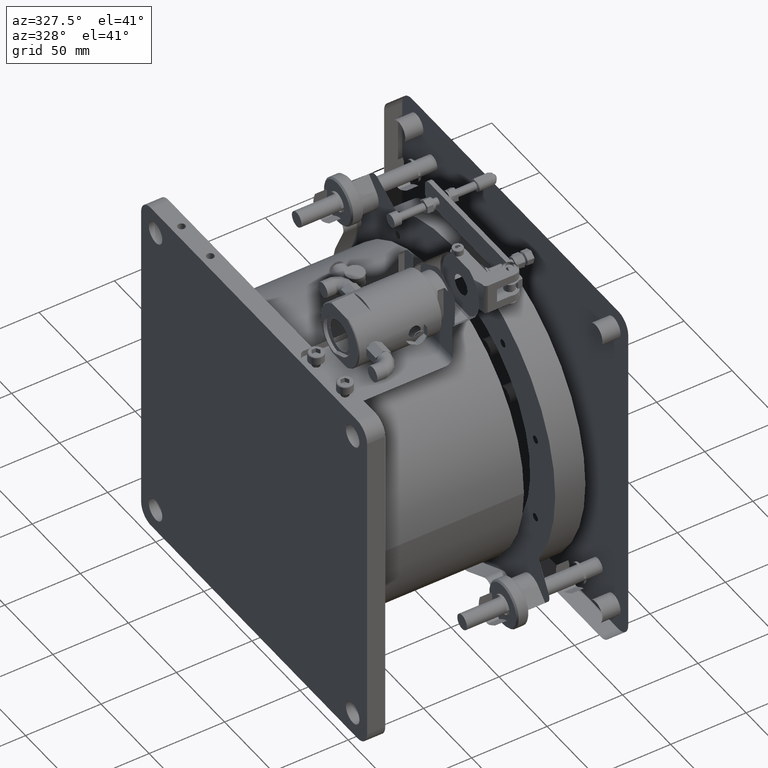
[diagram: clean part render]
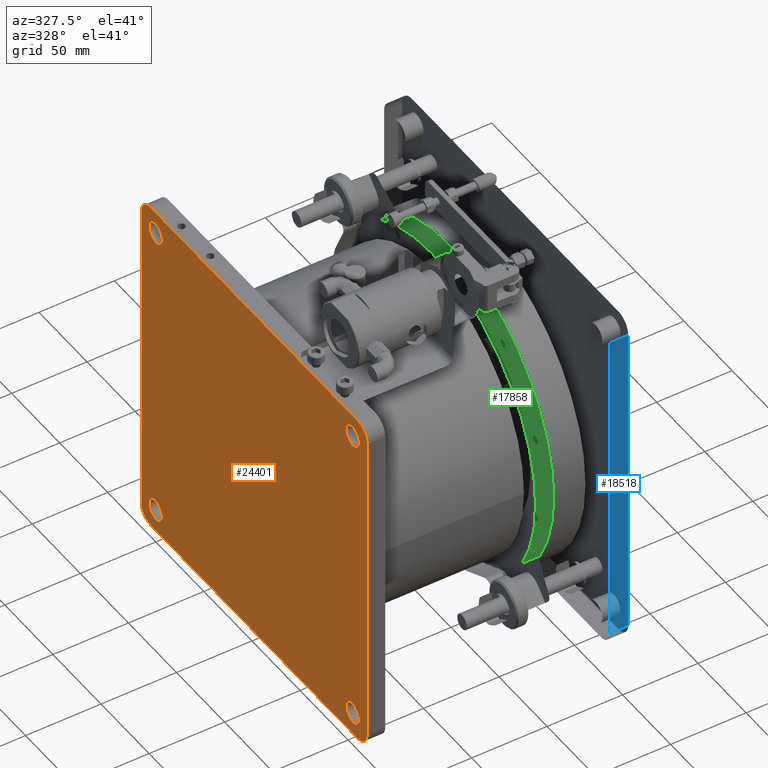
[diagram: same view with three faces highlighted in distinct colors, each labeled with its STEP entity id]
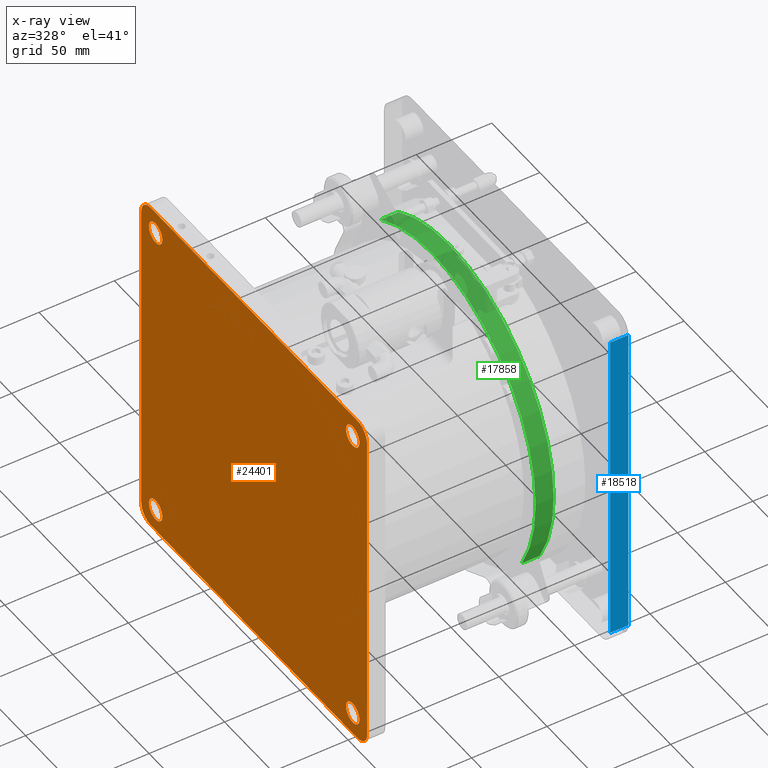
[diagram: x-ray of the same camera — body ghosted, the three highlighted faces saturated]
A machine part, auxiliary view with three faces highlighted in distinct colors.
The next image is the same camera in x-ray (body ghosted, the three faces saturated) — at least one of them is partly hidden behind the body in this view.
Their STEP definitions:

[orange] entity #24401 — the highlighted planar face has unit normal (-1, 0, 0).
#58 = DIRECTION ( 'NONE',  ( 3.473364927200038699E-17, 0.000000000000000000, 1.000000000000000000 ) ) ;
#184 = FACE_BOUND ( 'NONE', #24961, .T. ) ;
#267 = VERTEX_POINT ( 'NONE', #14850 ) ;
#274 = AXIS2_PLACEMENT_3D ( 'NONE', #8655, #12070, #16395 ) ;
#391 = ORIENTED_EDGE ( 'NONE', *, *, #632, .T. ) ;
#523 = LINE ( 'NONE', #4230, #21189 ) ;
#632 = EDGE_CURVE ( 'NONE', #10797, #11279, #17345, .T. ) ;
#1094 = DIRECTION ( 'NONE',  ( 3.473364927200038699E-17, 0.000000000000000000, 1.000000000000000000 ) ) ;
#1311 = VERTEX_POINT ( 'NONE', #19528 ) ;
#1688 = DIRECTION ( 'NONE',  ( 0.000000000000000000, 0.000000000000000000, 1.000000000000000000 ) ) ;
#1971 = DIRECTION ( 'NONE',  ( -1.000000000000000000, 3.081487911019577365E-33, 3.473364927200038699E-17 ) ) ;
#2000 = ORIENTED_EDGE ( 'NONE', *, *, #18579, .T. ) ;
#2973 = EDGE_LOOP ( 'NONE', ( #22254, #14530, #4603, #391, #13302, #12331, #16971, #12708 ) ) ;
#3325 = VECTOR ( 'NONE', #8746, 1000.000000000000000 ) ;
#3395 = CARTESIAN_POINT ( 'NONE',  ( 401.4299721316714340, 117.5000000000000426, 591.6094016609062010 ) ) ;
#3592 = DIRECTION ( 'NONE',  ( 1.000000000000000000, -3.081487911019577365E-33, -3.473364927200038699E-17 ) ) ;
#3597 = CARTESIAN_POINT ( 'NONE',  ( 401.4299721316714340, -102.4999999999999432, 489.1094016609063715 ) ) ;
#3655 = EDGE_CURVE ( 'NONE', #5692, #1311, #5072, .T. ) ;
#3709 = EDGE_LOOP ( 'NONE', ( #20944 ) ) ;
#3881 = CARTESIAN_POINT ( 'NONE',  ( 401.4299721316714340, -1.951563910473908770E-15, 591.6094016609062010 ) ) ;
#4027 = VECTOR ( 'NONE', #1094, 1000.000000000000000 ) ;
#4230 = CARTESIAN_POINT ( 'NONE',  ( 401.4299721316714340, -1.951563910473908770E-15, 474.1094016609062010 ) ) ;
#4463 = CARTESIAN_POINT ( 'NONE',  ( 401.4299721316714340, -102.4999999999999147, 701.1094016609062010 ) ) ;
#4486 = DIRECTION ( 'NONE',  ( -1.000000000000000000, 3.081487911019577365E-33, 3.473364927200038699E-17 ) ) ;
#4576 = EDGE_CURVE ( 'NONE', #13065, #5970, #8358, .T. ) ;
#4603 = ORIENTED_EDGE ( 'NONE', *, *, #24052, .T. ) ;
#4793 = LINE ( 'NONE', #3395, #3325 ) ;
#4908 = LINE ( 'NONE', #6453, #4027 ) ;
#5072 = CIRCLE ( 'NONE', #20110, 10.00000000000000888 ) ;
#5591 = VERTEX_POINT ( 'NONE', #20595 ) ;
#5692 = VERTEX_POINT ( 'NONE', #8393 ) ;
#5970 = VERTEX_POINT ( 'NONE', #11925 ) ;
#6042 = FACE_BOUND ( 'NONE', #17282, .T. ) ;
#6097 = CARTESIAN_POINT ( 'NONE',  ( 401.4299721316714340, -102.4999999999999147, 694.1094016609062010 ) ) ;
#6215 = CIRCLE ( 'NONE', #9862, 7.000000000000006217 ) ;
#6227 = VERTEX_POINT ( 'NONE', #11677 ) ;
#6453 = CARTESIAN_POINT ( 'NONE',  ( 401.4299721316714340, -117.5000000000000142, 591.6094016609062010 ) ) ;
#6532 = DIRECTION ( 'NONE',  ( 1.000000000000000000, -3.081487911019577365E-33, -3.473364927200038699E-17 ) ) ;
#6769 = CARTESIAN_POINT ( 'NONE',  ( 401.4299721316714340, -107.5000000000000142, 484.1094016609062010 ) ) ;
#7139 = DIRECTION ( 'NONE',  ( 0.000000000000000000, 0.000000000000000000, 1.000000000000000000 ) ) ;
#7401 = CARTESIAN_POINT ( 'NONE',  ( 401.4299721316714340, -1.951563910473908770E-15, 709.1094016609063146 ) ) ;
#8298 = DIRECTION ( 'NONE',  ( -3.081487911019577365E-33, -1.000000000000000000, 1.070313203372631366E-49 ) ) ;
#8358 = CIRCLE ( 'NONE', #16459, 10.00000000000000888 ) ;
#8393 = CARTESIAN_POINT ( 'NONE',  ( 401.4299721316714340, 107.5000000000000568, 709.1094016609063146 ) ) ;
#8493 = EDGE_CURVE ( 'NONE', #15458, #13065, #523, .T. ) ;
#8655 = CARTESIAN_POINT ( 'NONE',  ( 401.4299721316714340, -107.5000000000000000, 699.1094016609063146 ) ) ;
#8696 = DIRECTION ( 'NONE',  ( -1.000000000000000000, 3.081487911019577365E-33, 3.473364927200038699E-17 ) ) ;
#8746 = DIRECTION ( 'NONE',  ( -3.473364927200038699E-17, -0.000000000000000000, -1.000000000000000000 ) ) ;
#8854 = EDGE_CURVE ( 'NONE', #18306, #18306, #17082, .T. ) ;
#9070 = CIRCLE ( 'NONE', #13915, 7.000000000000006217 ) ;
#9650 = DIRECTION ( 'NONE',  ( 1.000000000000000000, -3.081487911019577365E-33, -3.473364927200038699E-17 ) ) ;
#9777 = AXIS2_PLACEMENT_3D ( 'NONE', #6097, #9650, #17782 ) ;
#9862 = AXIS2_PLACEMENT_3D ( 'NONE', #3597, #20643, #10976 ) ;
#10797 = VERTEX_POINT ( 'NONE', #17162 ) ;
#10951 = DIRECTION ( 'NONE',  ( 0.000000000000000000, 0.000000000000000000, 1.000000000000000000 ) ) ;
#10976 = DIRECTION ( 'NONE',  ( 0.000000000000000000, 0.000000000000000000, 1.000000000000000000 ) ) ;
#11279 = VERTEX_POINT ( 'NONE', #12536 ) ;
#11677 = CARTESIAN_POINT ( 'NONE',  ( 401.4299721316714340, 102.4999999999998579, 701.1094016609062010 ) ) ;
#11871 = ORIENTED_EDGE ( 'NONE', *, *, #8854, .T. ) ;
#11925 = CARTESIAN_POINT ( 'NONE',  ( 401.4299721316714340, -117.5000000000000142, 484.1094016609062010 ) ) ;
#12070 = DIRECTION ( 'NONE',  ( -1.000000000000000000, 3.081487911019577365E-33, 3.473364927200038699E-17 ) ) ;
#12331 = ORIENTED_EDGE ( 'NONE', *, *, #3655, .T. ) ;
#12357 = CARTESIAN_POINT ( 'NONE',  ( 401.4299721316714340, 107.5000000000000568, 699.1094016609063146 ) ) ;
#12363 = CARTESIAN_POINT ( 'NONE',  ( 401.4299721316714340, 102.5000000000000995, 489.1094016609063146 ) ) ;
#12434 = CARTESIAN_POINT ( 'NONE',  ( 401.4299721316714340, -107.4999999999999858, 474.1094016609062010 ) ) ;
#12536 = CARTESIAN_POINT ( 'NONE',  ( 401.4299721316714340, -107.4999999999999574, 709.1094016609063146 ) ) ;
#12708 = ORIENTED_EDGE ( 'NONE', *, *, #15148, .T. ) ;
#13065 = VERTEX_POINT ( 'NONE', #12434 ) ;
#13225 = DIRECTION ( 'NONE',  ( 3.081487911019577365E-33, 1.000000000000000000, -1.070313203372631366E-49 ) ) ;
#13302 = ORIENTED_EDGE ( 'NONE', *, *, #21450, .T. ) ;
#13654 = FACE_BOUND ( 'NONE', #15223, .T. ) ;
#13915 = AXIS2_PLACEMENT_3D ( 'NONE', #12363, #6532, #21913 ) ;
#14261 = CARTESIAN_POINT ( 'NONE',  ( 401.4299721316714340, 107.5000000000000284, 484.1094016609062010 ) ) ;
#14530 = ORIENTED_EDGE ( 'NONE', *, *, #4576, .T. ) ;
#14689 = ORIENTED_EDGE ( 'NONE', *, *, #16864, .T. ) ;
#14850 = CARTESIAN_POINT ( 'NONE',  ( 401.4299721316714340, 117.5000000000000426, 484.1094016609062010 ) ) ;
#15105 = AXIS2_PLACEMENT_3D ( 'NONE', #21011, #3592, #1688 ) ;
#15148 = EDGE_CURVE ( 'NONE', #267, #15458, #19164, .T. ) ;
#15223 = EDGE_LOOP ( 'NONE', ( #14689 ) ) ;
#15345 = CARTESIAN_POINT ( 'NONE',  ( 401.4299721316714340, 107.5000000000000284, 474.1094016609062010 ) ) ;
#15458 = VERTEX_POINT ( 'NONE', #15345 ) ;
#15892 = AXIS2_PLACEMENT_3D ( 'NONE', #14261, #8696, #10951 ) ;
#16166 = FACE_BOUND ( 'NONE', #3709, .T. ) ;
#16395 = DIRECTION ( 'NONE',  ( 0.000000000000000000, 0.000000000000000000, 1.000000000000000000 ) ) ;
#16459 = AXIS2_PLACEMENT_3D ( 'NONE', #6769, #20489, #7139 ) ;
#16864 = EDGE_CURVE ( 'NONE', #5591, #5591, #6215, .T. ) ;
#16971 = ORIENTED_EDGE ( 'NONE', *, *, #20558, .T. ) ;
#17047 = LINE ( 'NONE', #7401, #24475 ) ;
#17082 = CIRCLE ( 'NONE', #9777, 7.000000000000006217 ) ;
#17162 = CARTESIAN_POINT ( 'NONE',  ( 401.4299721316714340, -117.5000000000000142, 699.1094016609063146 ) ) ;
#17282 = EDGE_LOOP ( 'NONE', ( #11871 ) ) ;
#17345 = CIRCLE ( 'NONE', #274, 10.00000000000000888 ) ;
#17616 = FACE_OUTER_BOUND ( 'NONE', #2973, .T. ) ;
#17782 = DIRECTION ( 'NONE',  ( 0.000000000000000000, 0.000000000000000000, 1.000000000000000000 ) ) ;
#18306 = VERTEX_POINT ( 'NONE', #4463 ) ;
#18579 = EDGE_CURVE ( 'NONE', #6227, #6227, #24068, .T. ) ;
#19164 = CIRCLE ( 'NONE', #15892, 10.00000000000000888 ) ;
#19528 = CARTESIAN_POINT ( 'NONE',  ( 401.4299721316714340, 117.5000000000000426, 699.1094016609063146 ) ) ;
#20110 = AXIS2_PLACEMENT_3D ( 'NONE', #12357, #4486, #23929 ) ;
#20121 = PLANE ( 'NONE',  #24323 ) ;
#20489 = DIRECTION ( 'NONE',  ( -1.000000000000000000, 3.081487911019577365E-33, 3.473364927200038699E-17 ) ) ;
#20558 = EDGE_CURVE ( 'NONE', #1311, #267, #4793, .T. ) ;
#20595 = CARTESIAN_POINT ( 'NONE',  ( 401.4299721316714340, -102.4999999999999432, 496.1094016609063715 ) ) ;
#20643 = DIRECTION ( 'NONE',  ( 1.000000000000000000, -3.081487911019577365E-33, -3.473364927200038699E-17 ) ) ;
#20944 = ORIENTED_EDGE ( 'NONE', *, *, #22091, .T. ) ;
#21011 = CARTESIAN_POINT ( 'NONE',  ( 401.4299721316714340, 102.4999999999998579, 694.1094016609062010 ) ) ;
#21189 = VECTOR ( 'NONE', #8298, 1000.000000000000000 ) ;
#21450 = EDGE_CURVE ( 'NONE', #11279, #5692, #17047, .T. ) ;
#21913 = DIRECTION ( 'NONE',  ( 0.000000000000000000, 0.000000000000000000, 1.000000000000000000 ) ) ;
#22091 = EDGE_CURVE ( 'NONE', #23492, #23492, #9070, .T. ) ;
#22254 = ORIENTED_EDGE ( 'NONE', *, *, #8493, .T. ) ;
#23492 = VERTEX_POINT ( 'NONE', #23622 ) ;
#23622 = CARTESIAN_POINT ( 'NONE',  ( 401.4299721316714340, 102.5000000000000995, 496.1094016609063146 ) ) ;
#23929 = DIRECTION ( 'NONE',  ( 0.000000000000000000, 0.000000000000000000, 1.000000000000000000 ) ) ;
#24052 = EDGE_CURVE ( 'NONE', #5970, #10797, #4908, .T. ) ;
#24068 = CIRCLE ( 'NONE', #15105, 7.000000000000006217 ) ;
#24323 = AXIS2_PLACEMENT_3D ( 'NONE', #3881, #1971, #58 ) ;
#24401 = ADVANCED_FACE ( 'NONE', ( #16166, #6042, #17616, #13654, #184 ), #20121, .T. ) ;
#24475 = VECTOR ( 'NONE', #13225, 1000.000000000000000 ) ;
#24961 = EDGE_LOOP ( 'NONE', ( #2000 ) ) ;

[blue] entity #18518 — the highlighted planar face has unit normal (-0, 1, -0).
#1511 = ORIENTED_EDGE ( 'NONE', *, *, #14234, .T. ) ;
#1846 = DIRECTION ( 'NONE',  ( -2.579363212391470952E-17, 0.000000000000000000, -1.000000000000000000 ) ) ;
#2029 = VERTEX_POINT ( 'NONE', #23569 ) ;
#2142 = VECTOR ( 'NONE', #18483, 1000.000000000000000 ) ;
#2198 = EDGE_CURVE ( 'NONE', #20566, #12275, #10728, .T. ) ;
#2422 = EDGE_CURVE ( 'NONE', #12275, #6848, #25084, .T. ) ;
#2476 = CARTESIAN_POINT ( 'NONE',  ( 574.4299721316714340, -117.5000000000001990, 474.1094016609060304 ) ) ;
#5423 = ORIENTED_EDGE ( 'NONE', *, *, #2198, .T. ) ;
#5541 = CARTESIAN_POINT ( 'NONE',  ( 562.4299721316714340, -117.5000000000001137, 591.6094016609060873 ) ) ;
#5632 = PLANE ( 'NONE',  #16343 ) ;
#6303 = CARTESIAN_POINT ( 'NONE',  ( 574.4299721316714340, -117.5000000000001990, 484.1094016609060304 ) ) ;
#6848 = VERTEX_POINT ( 'NONE', #12524 ) ;
#7575 = LINE ( 'NONE', #5541, #16261 ) ;
#8123 = EDGE_CURVE ( 'NONE', #2029, #6848, #7575, .T. ) ;
#10728 = LINE ( 'NONE', #2476, #2142 ) ;
#10791 = ORIENTED_EDGE ( 'NONE', *, *, #8123, .F. ) ;
#10961 = CARTESIAN_POINT ( 'NONE',  ( 562.4299721316714340, -117.5000000000001137, 699.1094016609060873 ) ) ;
#12275 = VERTEX_POINT ( 'NONE', #6303 ) ;
#12524 = CARTESIAN_POINT ( 'NONE',  ( 562.4299721316714340, -117.5000000000001563, 484.1094016609060304 ) ) ;
#13499 = DIRECTION ( 'NONE',  ( -2.276784909277186579E-17, 1.000000000000000000, -3.885780586188046905E-16 ) ) ;
#14234 = EDGE_CURVE ( 'NONE', #2029, #20566, #24444, .T. ) ;
#15403 = CARTESIAN_POINT ( 'NONE',  ( 562.4299721316714340, -117.5000000000001990, 484.1094016609060304 ) ) ;
#16261 = VECTOR ( 'NONE', #1846, 1000.000000000000000 ) ;
#16343 = AXIS2_PLACEMENT_3D ( 'NONE', #21138, #13499, #20894 ) ;
#17568 = VECTOR ( 'NONE', #19369, 1000.000000000000000 ) ;
#18483 = DIRECTION ( 'NONE',  ( -0.000000000000000000, -3.885780586188046905E-16, -1.000000000000000000 ) ) ;
#18518 = ADVANCED_FACE ( 'NONE', ( #19104 ), #5632, .T. ) ;
#18980 = ORIENTED_EDGE ( 'NONE', *, *, #2422, .T. ) ;
#19104 = FACE_OUTER_BOUND ( 'NONE', #22486, .T. ) ;
#19369 = DIRECTION ( 'NONE',  ( -1.000000000000000000, -2.276784909277186579E-17, 8.847086599395204938E-33 ) ) ;
#20566 = VERTEX_POINT ( 'NONE', #22470 ) ;
#20894 = DIRECTION ( 'NONE',  ( 0.000000000000000000, 3.885780586188046905E-16, 1.000000000000000000 ) ) ;
#21138 = CARTESIAN_POINT ( 'NONE',  ( 562.4299721316714340, -117.5000000000001990, 474.1094016609060304 ) ) ;
#21580 = VECTOR ( 'NONE', #22919, 1000.000000000000000 ) ;
#22470 = CARTESIAN_POINT ( 'NONE',  ( 574.4299721316714340, -117.5000000000001137, 699.1094016609060873 ) ) ;
#22486 = EDGE_LOOP ( 'NONE', ( #1511, #5423, #18980, #10791 ) ) ;
#22919 = DIRECTION ( 'NONE',  ( 1.000000000000000000, 2.276784909277186579E-17, -8.847086599395204938E-33 ) ) ;
#23569 = CARTESIAN_POINT ( 'NONE',  ( 562.4299721316714340, -117.5000000000001137, 699.1094016609060873 ) ) ;
#24444 = LINE ( 'NONE', #10961, #21580 ) ;
#25084 = LINE ( 'NONE', #15403, #17568 ) ;

[green] entity #17858 — the highlighted cylindrical surface (partial cylindrical patch) has radius 107.5 mm, axis along (-1, -0, 0).
#385 = LINE ( 'NONE', #2807, #8185 ) ;
#574 = CARTESIAN_POINT ( 'NONE',  ( 531.4299721316714340, -93.05577859581327971, 537.7868035266004654 ) ) ;
#2807 = CARTESIAN_POINT ( 'NONE',  ( 531.4299721316714340, -93.05577859581326550, 537.7868035266004654 ) ) ;
#3305 = EDGE_CURVE ( 'NONE', #13740, #17157, #5881, .T. ) ;
#3370 = ORIENTED_EDGE ( 'NONE', *, *, #24232, .F. ) ;
#4604 = DIRECTION ( 'NONE',  ( 1.000000000000000000, 4.511083512226365095E-32, -3.473364927200044862E-17 ) ) ;
#4706 = EDGE_LOOP ( 'NONE', ( #3370, #6256, #21228, #12921 ) ) ;
#4844 = CARTESIAN_POINT ( 'NONE',  ( 531.4299721316714340, 53.82259813430548689, 684.6651802567198501 ) ) ;
#5196 = FACE_OUTER_BOUND ( 'NONE', #4706, .T. ) ;
#5664 = CARTESIAN_POINT ( 'NONE',  ( 519.4299721316714340, 1.860756927585878443E-14, 591.6094016609062010 ) ) ;
#5881 = CIRCLE ( 'NONE', #18879, 107.5000000000000426 ) ;
#5985 = VERTEX_POINT ( 'NONE', #8242 ) ;
#6256 = ORIENTED_EDGE ( 'NONE', *, *, #12725, .F. ) ;
#7113 = CARTESIAN_POINT ( 'NONE',  ( 531.4299721316714340, 1.860756927585878443E-14, 591.6094016609062010 ) ) ;
#8185 = VECTOR ( 'NONE', #4604, 1000.000000000000000 ) ;
#8242 = CARTESIAN_POINT ( 'NONE',  ( 519.4299721316714340, -93.05577859581327971, 537.7868035266004654 ) ) ;
#8773 = CYLINDRICAL_SURFACE ( 'NONE', #9467, 107.5000000000000426 ) ;
#9467 = AXIS2_PLACEMENT_3D ( 'NONE', #7113, #13067, #22745 ) ;
#10549 = VECTOR ( 'NONE', #12718, 1000.000000000000000 ) ;
#11646 = VERTEX_POINT ( 'NONE', #15169 ) ;
#12718 = DIRECTION ( 'NONE',  ( -1.000000000000000000, -4.511083512226365095E-32, 3.473364927200044862E-17 ) ) ;
#12725 = EDGE_CURVE ( 'NONE', #17157, #11646, #14249, .T. ) ;
#12921 = ORIENTED_EDGE ( 'NONE', *, *, #14486, .F. ) ;
#13067 = DIRECTION ( 'NONE',  ( -1.000000000000000000, -4.511083512226365095E-32, 3.473364927200044862E-17 ) ) ;
#13162 = DIRECTION ( 'NONE',  ( 1.000000000000000000, 4.511083512226365095E-32, -3.473364927200044862E-17 ) ) ;
#13740 = VERTEX_POINT ( 'NONE', #574 ) ;
#14249 = LINE ( 'NONE', #4844, #10549 ) ;
#14410 = DIRECTION ( 'NONE',  ( 0.000000000000000000, 0.000000000000000000, 1.000000000000000000 ) ) ;
#14486 = EDGE_CURVE ( 'NONE', #5985, #13740, #385, .T. ) ;
#14605 = CARTESIAN_POINT ( 'NONE',  ( 531.4299721316713203, 53.82259813430547979, 684.6651802567198501 ) ) ;
#15169 = CARTESIAN_POINT ( 'NONE',  ( 519.4299721316714340, 53.82259813430547979, 684.6651802567198501 ) ) ;
#17157 = VERTEX_POINT ( 'NONE', #14605 ) ;
#17858 = ADVANCED_FACE ( 'NONE', ( #5196 ), #8773, .F. ) ;
#18879 = AXIS2_PLACEMENT_3D ( 'NONE', #20267, #22438, #14410 ) ;
#20267 = CARTESIAN_POINT ( 'NONE',  ( 531.4299721316714340, 1.860756927585878443E-14, 591.6094016609062010 ) ) ;
#21228 = ORIENTED_EDGE ( 'NONE', *, *, #3305, .F. ) ;
#21899 = CIRCLE ( 'NONE', #23513, 107.5000000000000426 ) ;
#22438 = DIRECTION ( 'NONE',  ( -1.000000000000000000, -4.511083512226365095E-32, 3.473364927200044862E-17 ) ) ;
#22745 = DIRECTION ( 'NONE',  ( 0.000000000000000000, 0.000000000000000000, 1.000000000000000000 ) ) ;
#22843 = DIRECTION ( 'NONE',  ( 0.000000000000000000, -1.776356839400250859E-15, 1.000000000000000000 ) ) ;
#23513 = AXIS2_PLACEMENT_3D ( 'NONE', #5664, #13162, #22843 ) ;
#24232 = EDGE_CURVE ( 'NONE', #11646, #5985, #21899, .T. ) ;